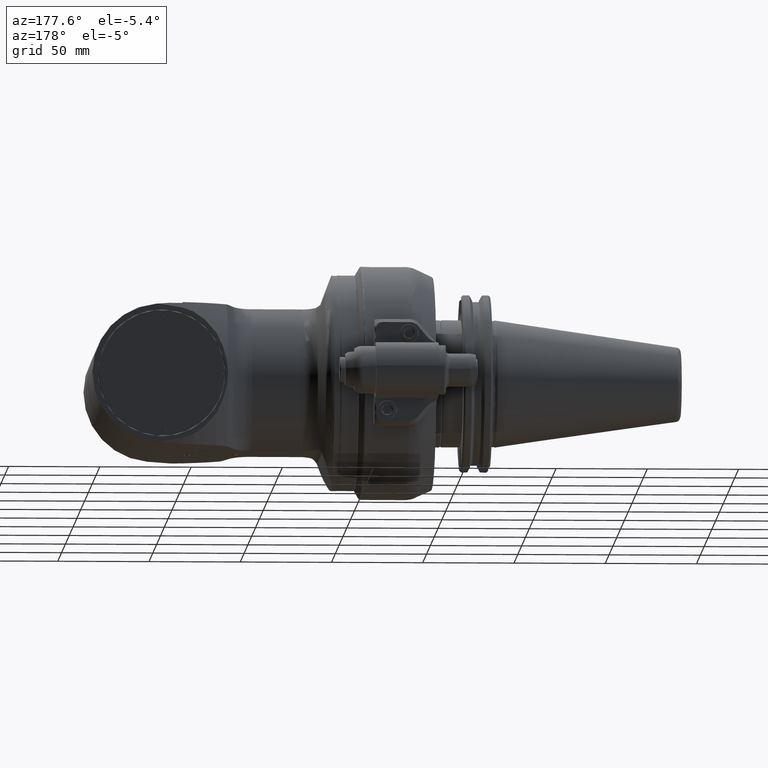
[diagram: clean part render]
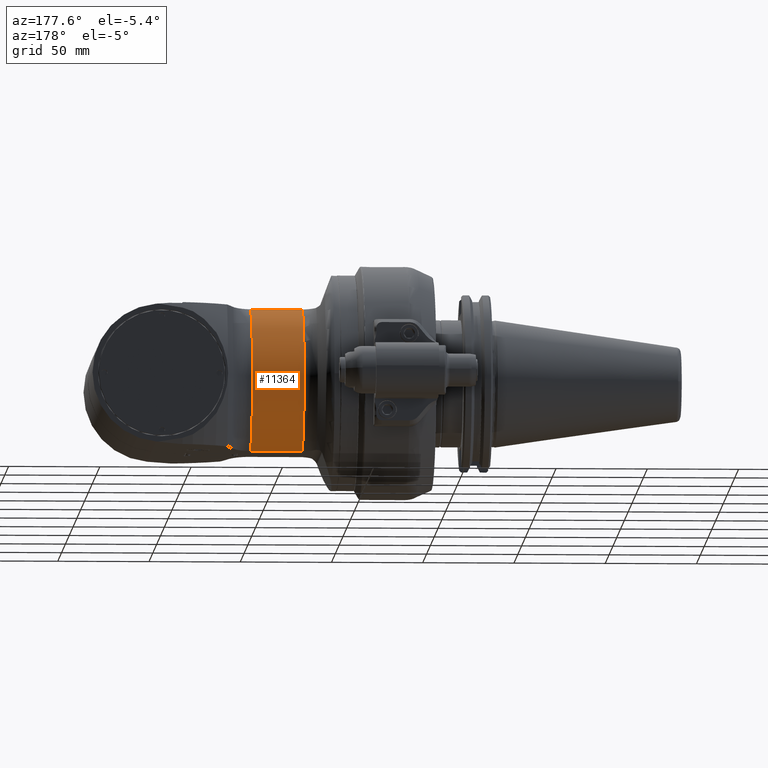
[diagram: same view with one face highlighted and labeled with its STEP entity id]
A machine part, auxiliary view. The second image highlights one B-rep face of the part: STEP entity #11364.
In plain terms, the highlighted cylindrical surface (partial cylindrical patch) has radius 42.5 mm, axis along (-1, 0, 0).
Its self-contained STEP definition (entity closure, byte-faithful):
#969=LINE('',#22625,#1710);
#979=LINE('',#22892,#1720);
#1710=VECTOR('',#15307,28.28976786872);
#1720=VECTOR('',#15343,28.28976786872);
#2078=CYLINDRICAL_SURFACE('',#12553,42.5);
#2710=FACE_OUTER_BOUND('',#3458,.T.);
#3458=EDGE_LOOP('',(#9457,#9458,#9459,#9460));
#4193=CIRCLE('',#12533,42.5);
#4206=CIRCLE('',#12554,42.5);
#5126=VERTEX_POINT('',#22487);
#5127=VERTEX_POINT('',#22500);
#5132=VERTEX_POINT('',#22624);
#5176=VERTEX_POINT('',#22875);
#6611=EDGE_CURVE('',#5126,#5127,#4193,.T.);
#6618=EDGE_CURVE('',#5132,#5127,#969,.T.);
#6668=EDGE_CURVE('',#5126,#5176,#979,.T.);
#6677=EDGE_CURVE('',#5132,#5176,#4206,.T.);
#9457=ORIENTED_EDGE('',*,*,#6611,.F.);
#9458=ORIENTED_EDGE('',*,*,#6668,.T.);
#9459=ORIENTED_EDGE('',*,*,#6677,.F.);
#9460=ORIENTED_EDGE('',*,*,#6618,.T.);
#11364=ADVANCED_FACE('',(#2710),#2078,.T.);
#12533=AXIS2_PLACEMENT_3D('',#22501,#15299,#15300);
#12553=AXIS2_PLACEMENT_3D('',#22909,#15356,#15357);
#12554=AXIS2_PLACEMENT_3D('',#22910,#15358,#15359);
#15299=DIRECTION('center_axis',(-1.,0.,0.));
#15300=DIRECTION('ref_axis',(0.,0.397396370683616,0.917647058823538));
#15307=DIRECTION('',(-1.,0.,0.));
#15343=DIRECTION('',(1.,0.,0.));
#15356=DIRECTION('center_axis',(-1.,0.,0.));
#15357=DIRECTION('ref_axis',(0.,1.,0.));
#15358=DIRECTION('center_axis',(1.,0.,0.));
#15359=DIRECTION('ref_axis',(0.,1.,0.));
#22487=CARTESIAN_POINT('',(29.29063844602,16.88934575405,39.));
#22500=CARTESIAN_POINT('',(29.29063844602,16.88934575405,-39.));
#22501=CARTESIAN_POINT('Origin',(29.29063844602,0.,0.));
#22624=CARTESIAN_POINT('',(57.58040631473,16.88934575405,-39.));
#22625=CARTESIAN_POINT('',(57.58040631473,16.88934575405,-39.));
#22875=CARTESIAN_POINT('',(57.58040631473,16.88934575405,39.));
#22892=CARTESIAN_POINT('',(29.29063844602,16.88934575405,39.));
#22909=CARTESIAN_POINT('Origin',(43.,0.,0.));
#22910=CARTESIAN_POINT('Origin',(57.58040631473,0.,0.));